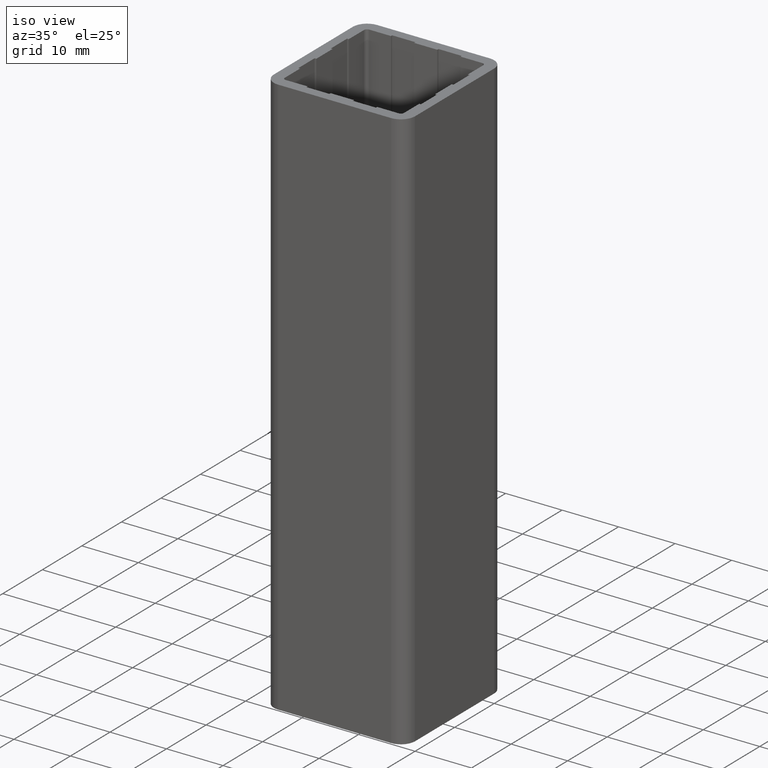
[diagram: clean part render]
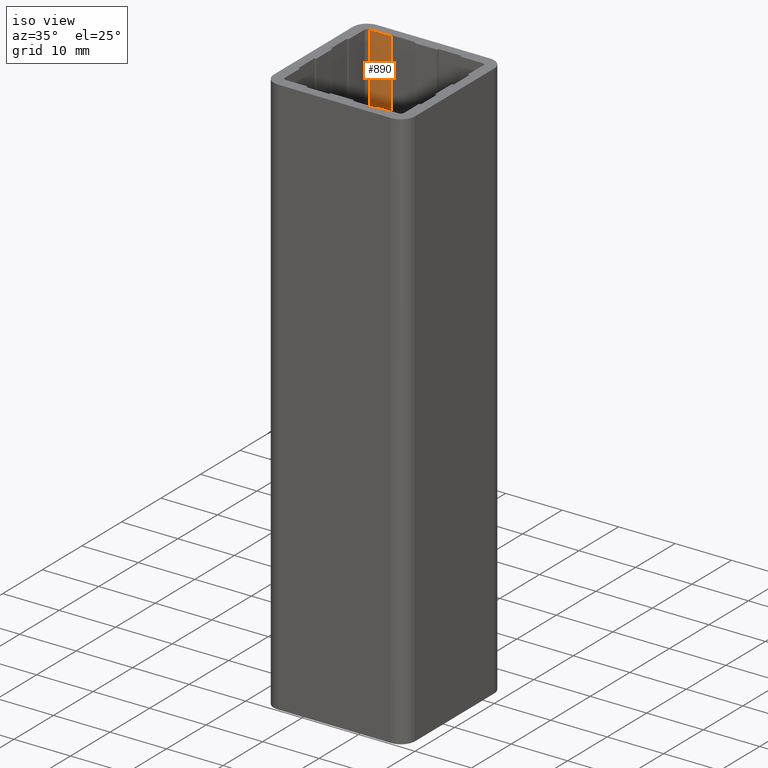
[diagram: same view with one face highlighted and labeled with its STEP entity id]
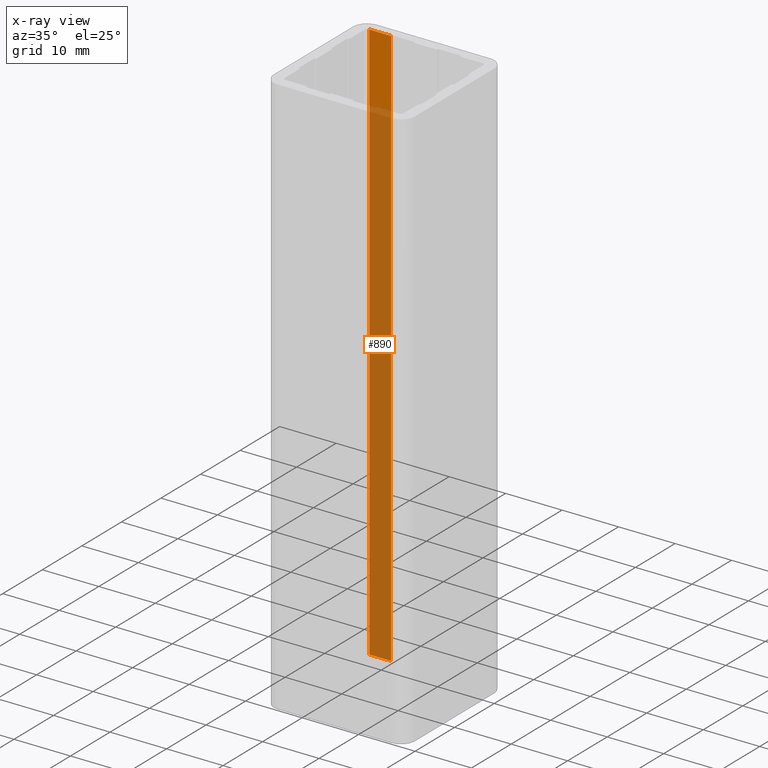
[diagram: x-ray of the same camera — body ghosted, the highlighted face saturated]
A machine part, iso view. The second image highlights one B-rep face of the part: STEP entity #890.
The next image is the same camera in x-ray: the body ghosted, the highlighted face saturated — about 88% of this face is hidden behind the body in this view.
In plain terms, the highlighted planar face has unit normal (0, -1, 0).
Its self-contained STEP definition (entity closure, byte-faithful):
#832=CARTESIAN_POINT('',(-22.500000000000000,10.549999999999898,0.0));
#833=VERTEX_POINT('',#832);
#841=CARTESIAN_POINT('',(-22.500000000000000,10.549999999999898,100.0));
#842=VERTEX_POINT('',#841);
#843=CARTESIAN_POINT('',(-22.500000000000000,10.549999999999898,0.0));
#844=DIRECTION('',(0.0,0.0,1.0));
#845=VECTOR('',#844,100.0);
#846=LINE('',#843,#845);
#847=EDGE_CURVE('',#833,#842,#846,.T.);
#860=CARTESIAN_POINT('',(-22.500000000000000,10.549999999999898,0.0));
#861=DIRECTION('',(0.0,-1.0,0.0));
#862=DIRECTION('',(1.0,0.0,0.0));
#863=AXIS2_PLACEMENT_3D('',#860,#861,#862);
#864=PLANE('',#863);
#865=CARTESIAN_POINT('',(-18.649999999999864,10.549999999999898,0.0));
#866=VERTEX_POINT('',#865);
#867=CARTESIAN_POINT('',(-22.500000000000000,10.549999999999898,0.0));
#868=DIRECTION('',(1.0,0.0,0.0));
#869=VECTOR('',#868,3.850000000000136);
#870=LINE('',#867,#869);
#871=EDGE_CURVE('',#833,#866,#870,.T.);
#872=ORIENTED_EDGE('',*,*,#871,.T.);
#873=CARTESIAN_POINT('',(-18.649999999999864,10.549999999999898,100.0));
#874=VERTEX_POINT('',#873);
#875=CARTESIAN_POINT('',(-18.649999999999864,10.549999999999898,0.0));
#876=DIRECTION('',(0.0,0.0,1.0));
#877=VECTOR('',#876,100.0);
#878=LINE('',#875,#877);
#879=EDGE_CURVE('',#866,#874,#878,.T.);
#880=ORIENTED_EDGE('',*,*,#879,.T.);
#881=CARTESIAN_POINT('',(-22.500000000000000,10.549999999999898,100.0));
#882=DIRECTION('',(1.0,0.0,0.0));
#883=VECTOR('',#882,3.850000000000136);
#884=LINE('',#881,#883);
#885=EDGE_CURVE('',#842,#874,#884,.T.);
#886=ORIENTED_EDGE('',*,*,#885,.F.);
#887=ORIENTED_EDGE('',*,*,#847,.F.);
#888=EDGE_LOOP('',(#872,#880,#886,#887));
#889=FACE_OUTER_BOUND('',#888,.T.);
#890=ADVANCED_FACE('',(#889),#864,.T.);